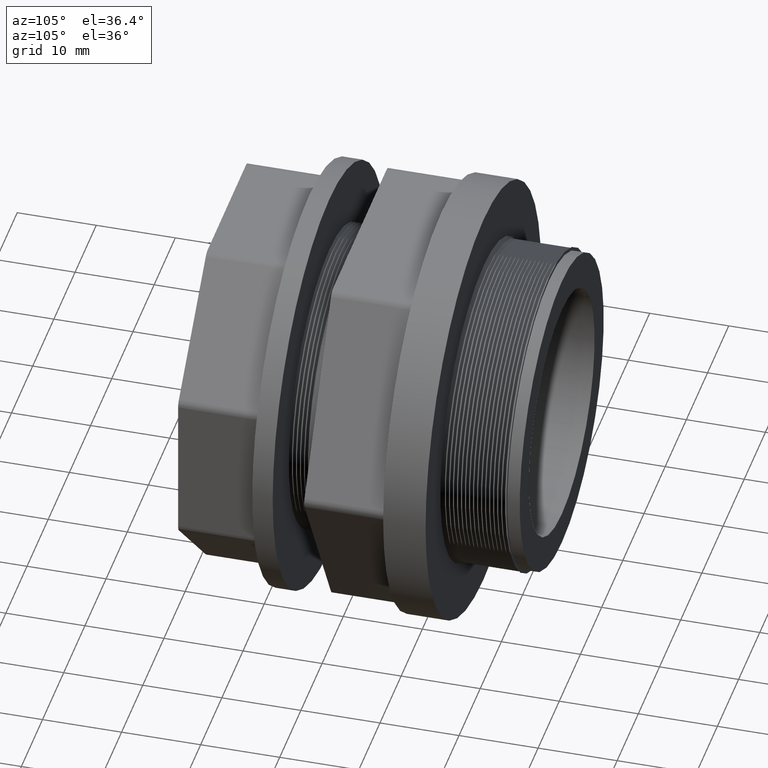
[diagram: clean part render]
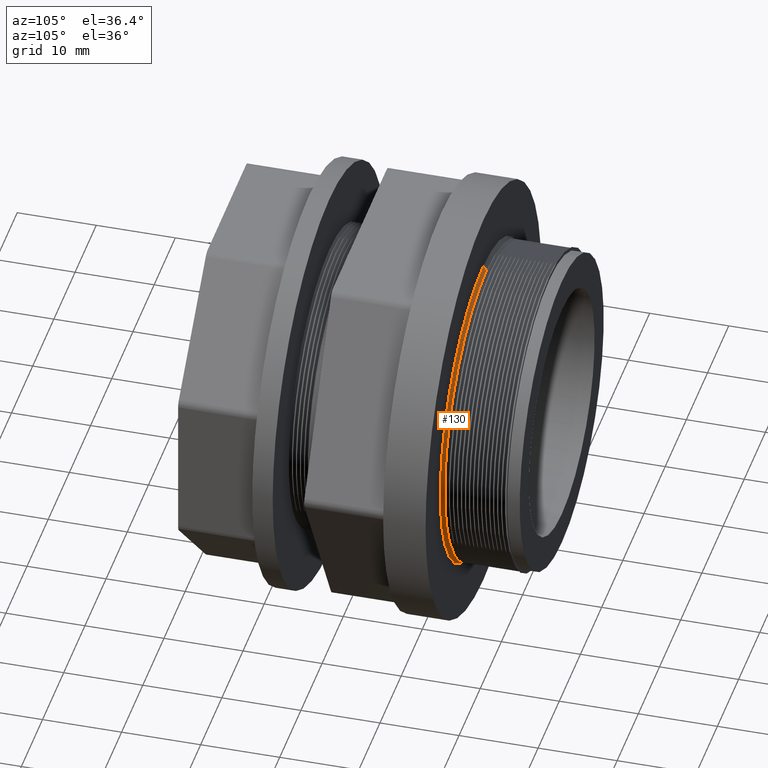
[diagram: same view with one face highlighted and labeled with its STEP entity id]
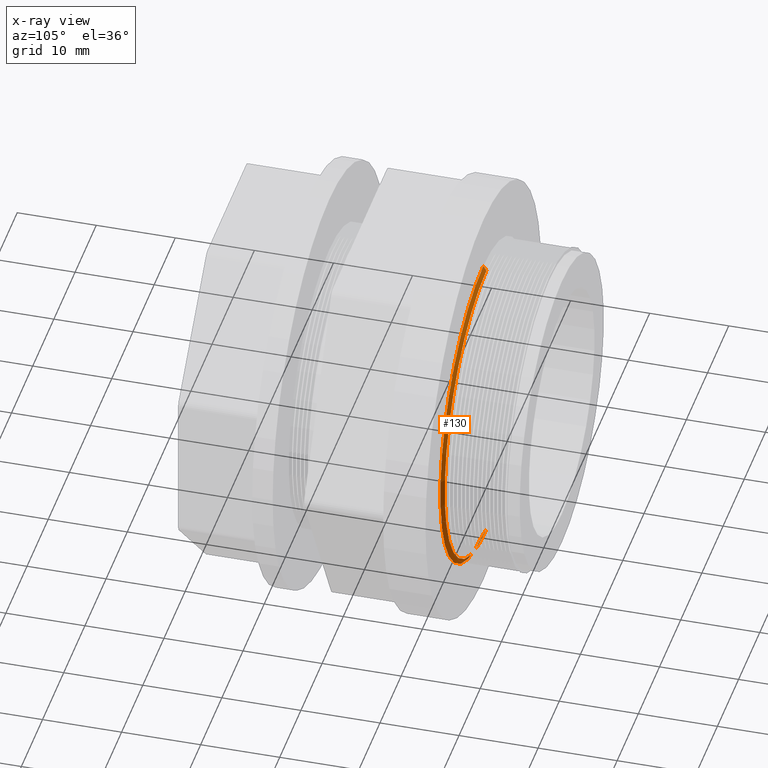
[diagram: x-ray of the same camera — body ghosted, the highlighted face saturated]
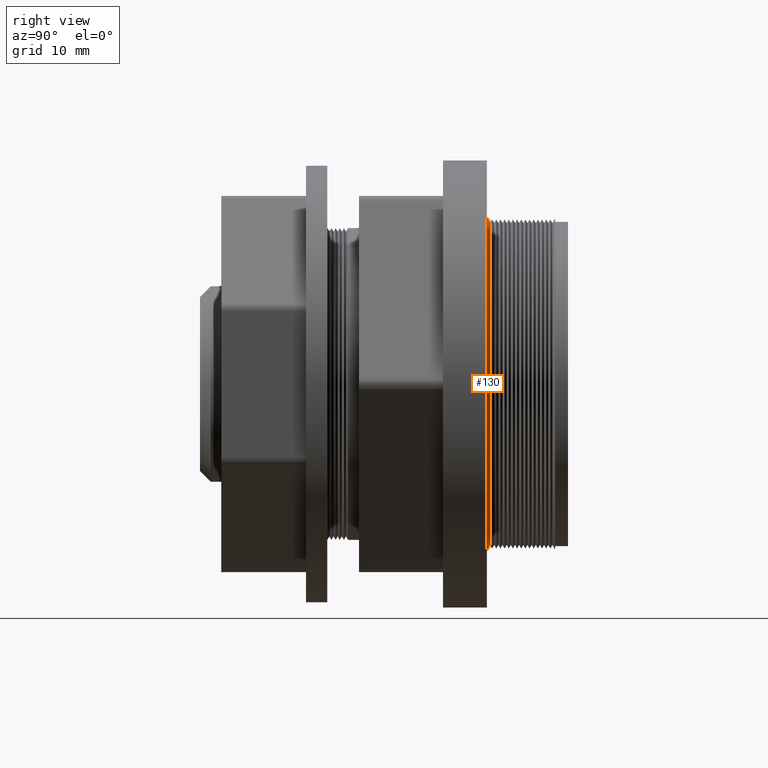
[diagram: same view with one face highlighted and labeled with its STEP entity id]
A machine part, auxiliary view. The second image highlights one B-rep face of the part: STEP entity #130.
The next image is the same camera in x-ray: the body ghosted, the highlighted face saturated — about 1% of this face is hidden behind the body in this view.
A second angle (right view) of the same face is appended — the face is thin or edge-on in the first view.
In plain terms, the highlighted conical surface has half-angle 60.018 deg.
Its self-contained STEP definition (entity closure, byte-faithful):
#1 = VERTEX_POINT ( 'NONE', #2364 ) ;
#4 = EDGE_CURVE ( 'NONE', #165, #1, #2360, .T. ) ;
#10 = ORIENTED_EDGE ( 'NONE', *, *, #14, .F. ) ;
#11 = EDGE_CURVE ( 'NONE', #151, #12, #2929, .T. ) ;
#12 = VERTEX_POINT ( 'NONE', #2940 ) ;
#13 = EDGE_CURVE ( 'NONE', #165, #151, #2928, .T. ) ;
#14 = EDGE_CURVE ( 'NONE', #1, #12, #2937, .T. ) ;
#15 = ORIENTED_EDGE ( 'NONE', *, *, #11, .T. ) ;
#17 = ORIENTED_EDGE ( 'NONE', *, *, #13, .T. ) ;
#130 = ADVANCED_FACE ( 'NONE', ( #666 ), #668, .T. ) ;
#149 = EDGE_LOOP ( 'NONE', ( #150, #17, #15, #10 ) ) ;
#150 = ORIENTED_EDGE ( 'NONE', *, *, #4, .F. ) ;
#151 = VERTEX_POINT ( 'NONE', #833 ) ;
#165 = VERTEX_POINT ( 'NONE', #814 ) ;
#663 = DIRECTION ( 'NONE',  ( 0.0000000000000000000, -1.000000000000000000, 0.0000000000000000000 ) ) ;
#664 = CARTESIAN_POINT ( 'NONE',  ( 0.0000000000000000000, 1.379999999999999700, 0.0000000000000000000 ) ) ;
#666 = FACE_OUTER_BOUND ( 'NONE', #149, .T. ) ;
#667 = AXIS2_PLACEMENT_3D ( 'NONE', #664, #663, #781 ) ;
#668 = CONICAL_SURFACE ( 'NONE', #667, 0.8000000000000000400, 1.047511710461937800 ) ;
#781 = DIRECTION ( 'NONE',  ( 0.0000000000000000000, 0.0000000000000000000, -1.000000000000000000 ) ) ;
#814 = CARTESIAN_POINT ( 'NONE',  ( 9.638059260160755700E-017, 1.394991837162775000, 0.7740145267796639800 ) ) ;
#833 = CARTESIAN_POINT ( 'NONE',  ( 9.797174393178826200E-017, 1.379999999999999700, 0.8000000000000000400 ) ) ;
#2359 = CARTESIAN_POINT ( 'NONE',  ( 0.0000000000000000000, 1.394991837162775000, 0.0000000000000000000 ) ) ;
#2360 = CIRCLE ( 'NONE', #2510, 0.7740145267796639800 ) ;
#2364 = CARTESIAN_POINT ( 'NONE',  ( 0.0000000000000000000, 1.394991837162775000, -0.7740145267796639800 ) ) ;
#2507 = DIRECTION ( 'NONE',  ( 0.0000000000000000000, 0.0000000000000000000, 1.000000000000000000 ) ) ;
#2509 = DIRECTION ( 'NONE',  ( -0.0000000000000000000, 1.000000000000000000, -0.0000000000000000000 ) ) ;
#2510 = AXIS2_PLACEMENT_3D ( 'NONE', #2359, #2509, #2507 ) ;
#2916 = AXIS2_PLACEMENT_3D ( 'NONE', #2943, #2942, #2941 ) ;
#2917 = CARTESIAN_POINT ( 'NONE',  ( 9.797174393178826200E-017, 1.379999999999999700, 0.8000000000000000400 ) ) ;
#2919 = DIRECTION ( 'NONE',  ( 0.0000000000000000000, -0.4997279054258457800, -0.8661824406778845200 ) ) ;
#2921 = VECTOR ( 'NONE', #2919, 39.37007874015748100 ) ;
#2928 = LINE ( 'NONE', #2917, #2955 ) ;
#2929 = CIRCLE ( 'NONE', #2916, 0.8000000000000000400 ) ;
#2935 = CARTESIAN_POINT ( 'NONE',  ( 0.0000000000000000000, 1.379999999999999700, -0.8000000000000000400 ) ) ;
#2937 = LINE ( 'NONE', #2935, #2921 ) ;
#2940 = CARTESIAN_POINT ( 'NONE',  ( 0.0000000000000000000, 1.379999999999999700, -0.8000000000000000400 ) ) ;
#2941 = DIRECTION ( 'NONE',  ( 0.0000000000000000000, 0.0000000000000000000, 1.000000000000000000 ) ) ;
#2942 = DIRECTION ( 'NONE',  ( -0.0000000000000000000, 1.000000000000000000, -0.0000000000000000000 ) ) ;
#2943 = CARTESIAN_POINT ( 'NONE',  ( 0.0000000000000000000, 1.379999999999999700, 0.0000000000000000000 ) ) ;
#2954 = DIRECTION ( 'NONE',  ( 1.060767553453813400E-016, -0.4997279054258457800, 0.8661824406778845200 ) ) ;
#2955 = VECTOR ( 'NONE', #2954, 39.37007874015748100 ) ;